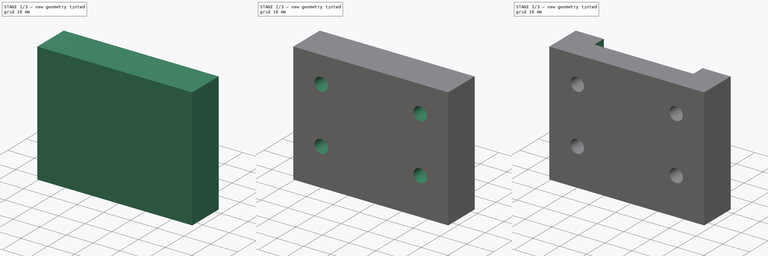
[diagram: build sequence overview — one tinted view per stage of 3, left to right]
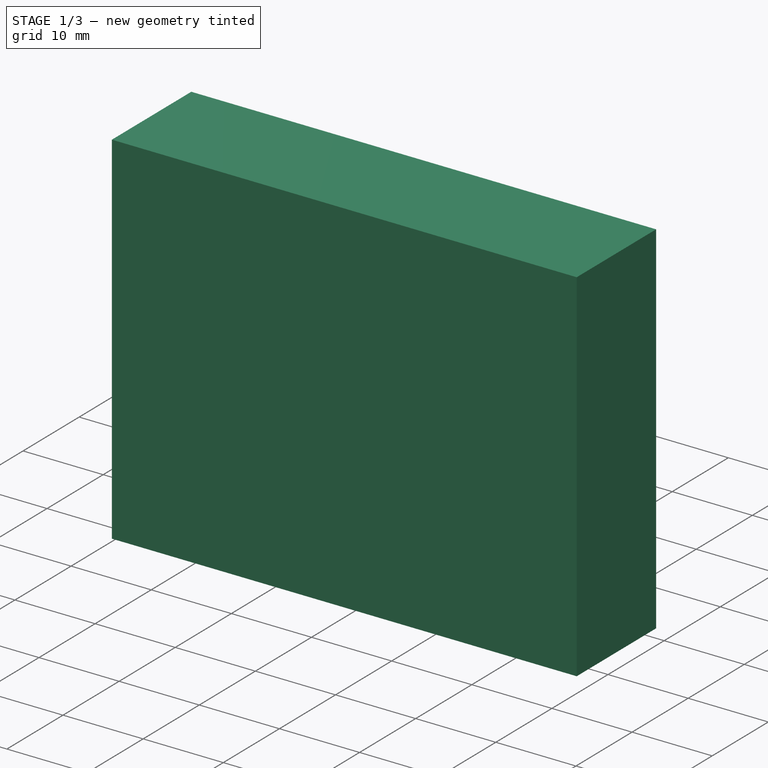
[diagram: stage 1 of 3 — iso view after this stage's code; geometry added in this stage tinted green]
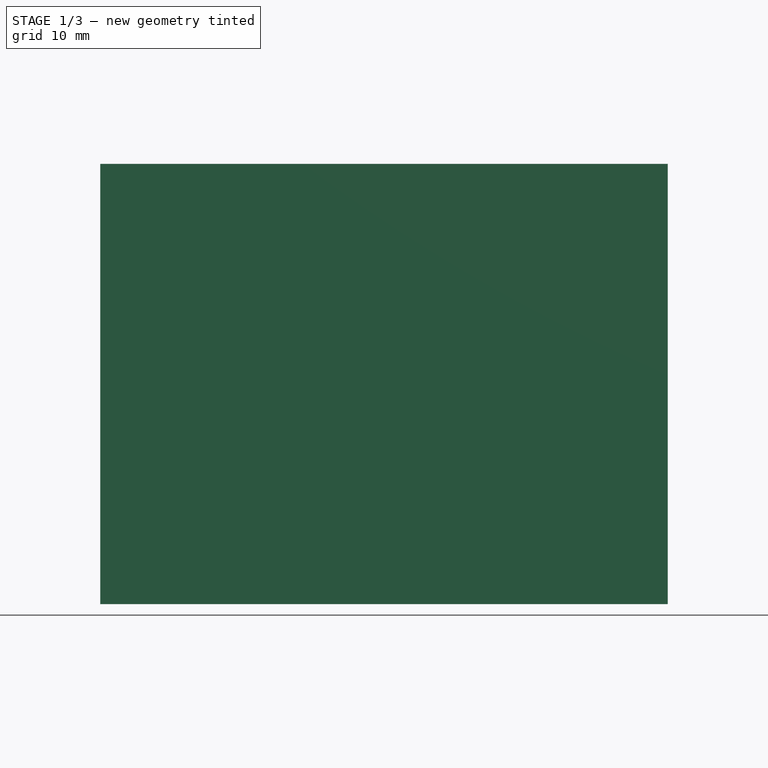
[diagram: stage 1 of 3 — front view after this stage's code; geometry added in this stage tinted green]
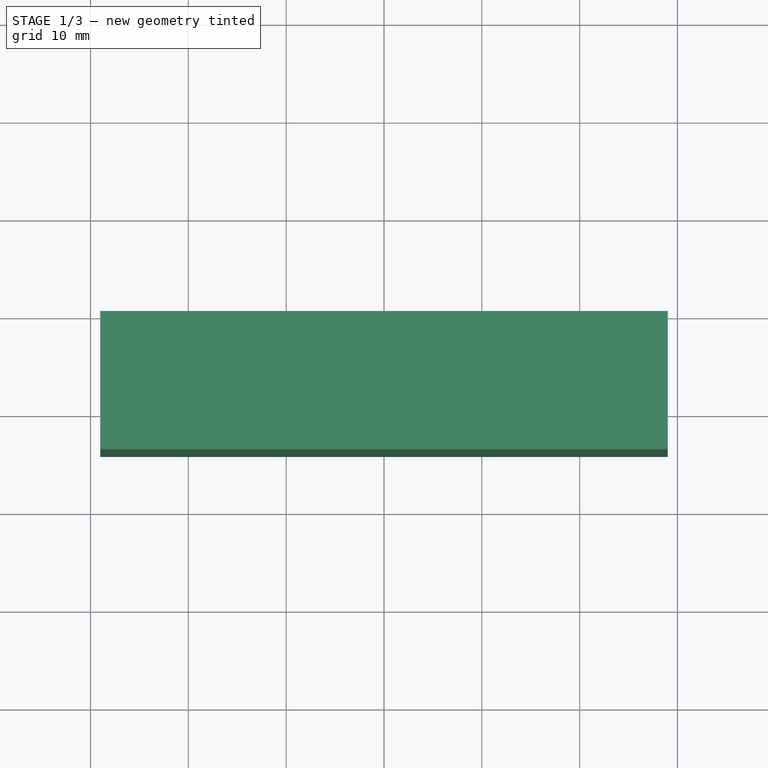
[diagram: stage 1 of 3 — top view after this stage's code; geometry added in this stage tinted green]
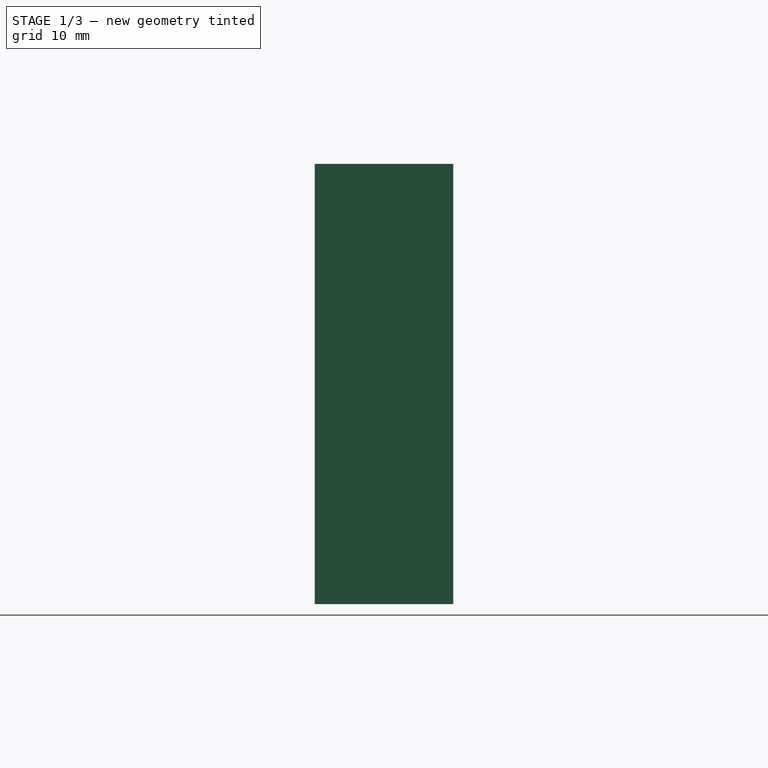
[diagram: stage 1 of 3 — right view after this stage's code; geometry added in this stage tinted green]
FCSTD DOCUMENT  (FreeCAD 0.15R4664 (Git))
Label: ballnut_house_support
License: CC-BY 3.0
LicenseURL: http://creativecommons.org/licenses/by/3.0/
objects: Drawing::FeatureView×32, Drawing::FeatureViewPart×7, Sketcher::SketchObject×5, PartDesign::Pocket×4, PartDesign::Pad×1, Drawing::FeaturePage×1
note: 15 computed .brp shape members not serialized (recipe doc carries the construction recipe); baked Part::Feature solids carry a one-line shape summary decoded from their .brp

FEATURE [Sketcher::SketchObject] Sketch001
  Placement = pos=(0,0,0) rot=(1,0,0;1.5708rad)
  sketch-geometry (4):
    g0: LineSegment StartX=-29 StartY=40 StartZ=0 EndX=29 EndY=40 EndZ=0
    g1: LineSegment StartX=29 StartY=40 StartZ=0 EndX=29 EndY=-5 EndZ=0
    g2: LineSegment StartX=29 StartY=-5 StartZ=0 EndX=-29 EndY=-5 EndZ=0
    g3: LineSegment StartX=-29 StartY=-5 StartZ=0 EndX=-29 EndY=40 EndZ=0
  constraints (12):
    c: Coincident(g0,g1)
    c: Coincident(g1,g2)
    c: Coincident(g2,g3)
    c: Coincident(g3,g0)
    c: Horizontal(g0)
    c: Horizontal(g2)
    c: Vertical(g1)
    c: Vertical(g3)
    c: DistanceY(g1,g0) = 45
    c: DistanceX(g2,g1) = 58
    c: DistanceX(g-1,g2) = -29
    c: Distance(g-1,g2) = 5
FEATURE [PartDesign::Pad] Pad
  Length = 14.15
  Length2 = 792
  Placement = pos=(0,0,0) rot=(1,0,0;1.5708rad)
  Sketch = -> Sketch001
  Type = 0
FEATURE [Sketcher::SketchObject] Sketch002
  Placement = pos=(0,0,0) rot=(-1,0,0;1.5708rad)
  Support = -> Pad [Face5]
  sketch-geometry (4):
    g0: LineSegment StartX=-24 StartY=0 StartZ=0 EndX=24 EndY=0 EndZ=0
    g1: LineSegment StartX=24 StartY=0 StartZ=0 EndX=24 EndY=-35 EndZ=0
    g2: LineSegment StartX=24 StartY=-35 StartZ=0 EndX=-24 EndY=-35 EndZ=0
    g3: LineSegment StartX=-24 StartY=-35 StartZ=0 EndX=-24 EndY=0 EndZ=0
  constraints (12):
    c: Coincident(g0,g1)
    c: Coincident(g1,g2)
    c: Coincident(g2,g3)
    c: Coincident(g3,g0)
    c: Horizontal(g0)
    c: Horizontal(g2)
    c: Vertical(g1)
    c: Vertical(g3)
    c: PointOnObject(g0,g-1)
    c: DistanceX(g0,g0) = 48
    c: DistanceX(g-1,g0) = 24
    c: DistanceY(g0,g1) = -35
FEATURE [PartDesign::Pocket] Pocket
  Length = 5
  Placement = pos=(0,0,0) rot=(1,0,0;1.5708rad)
  Sketch = -> Sketch002
  Type = 0
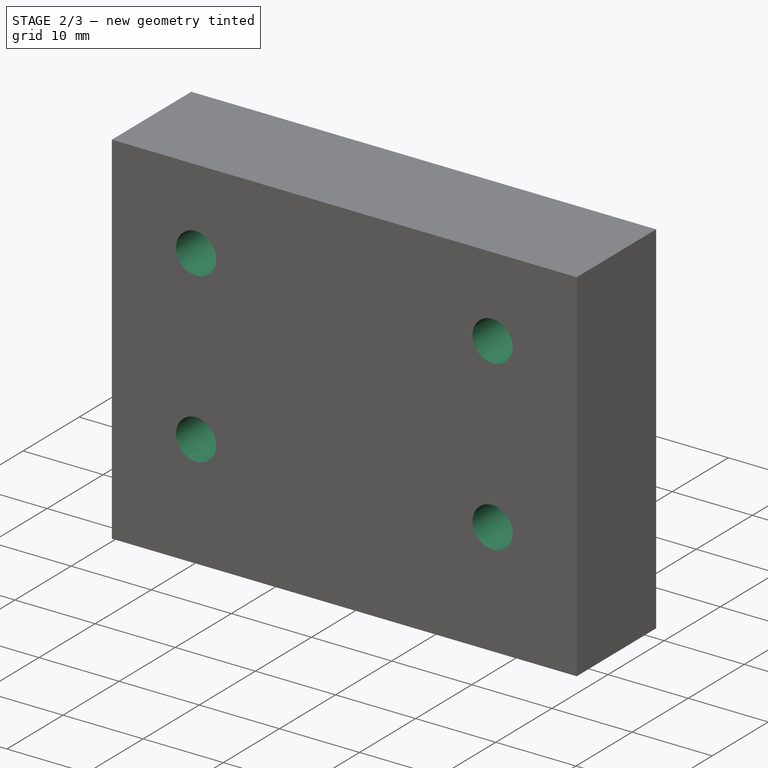
[diagram: stage 2 of 3 — iso view after this stage's code; geometry added in this stage tinted green]
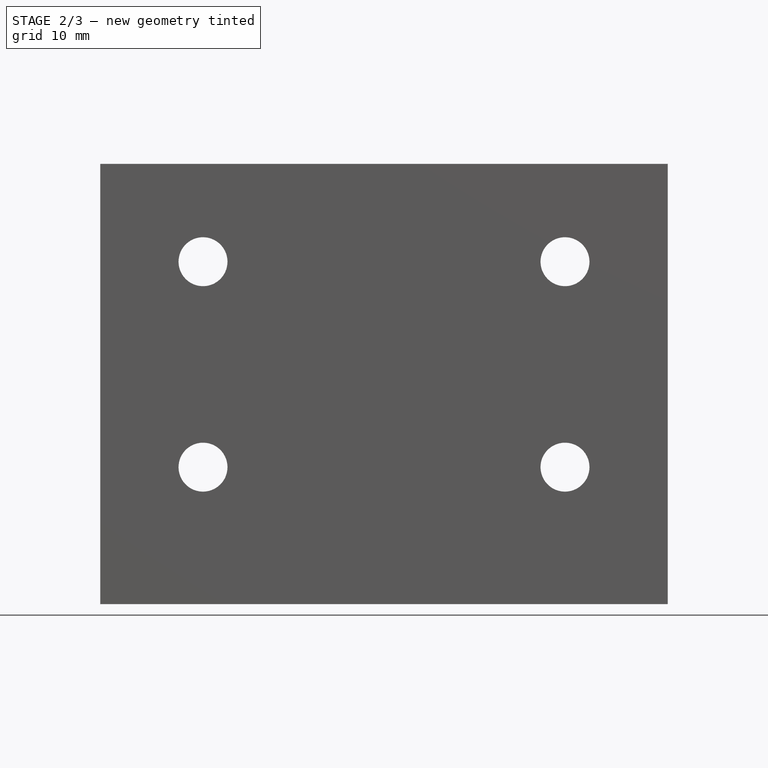
[diagram: stage 2 of 3 — front view after this stage's code; geometry added in this stage tinted green]
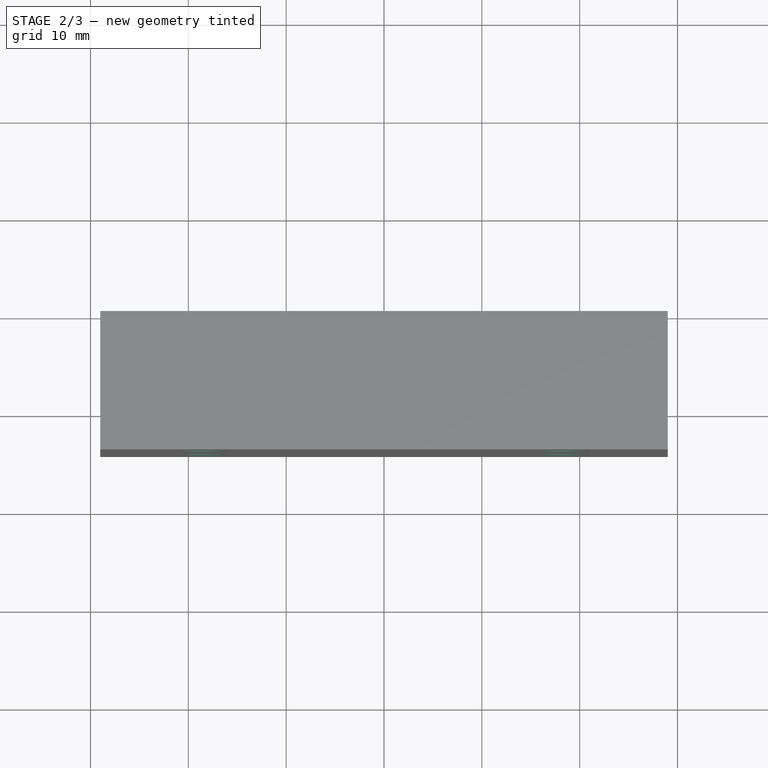
[diagram: stage 2 of 3 — top view after this stage's code; geometry added in this stage tinted green]
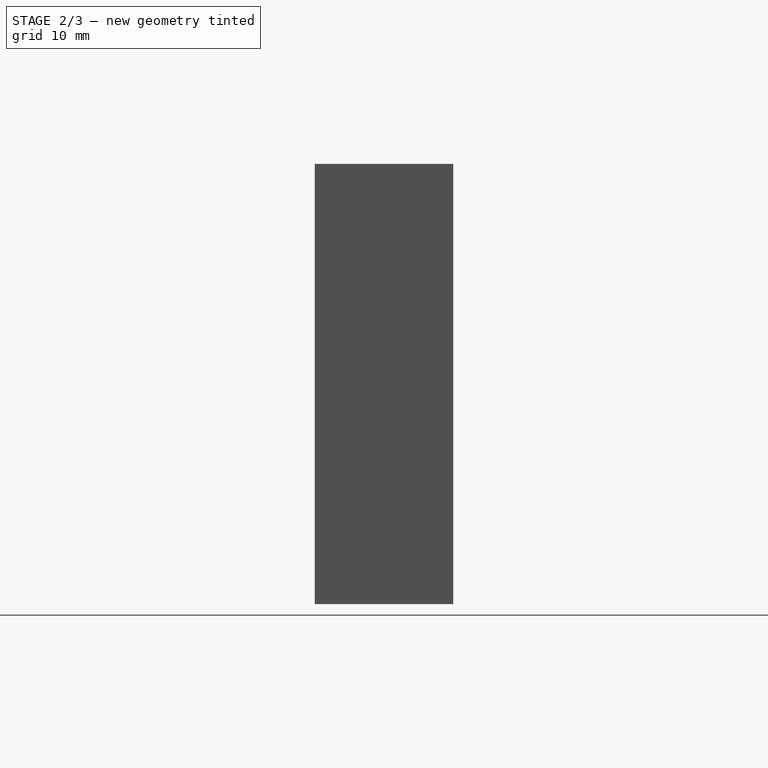
[diagram: stage 2 of 3 — right view after this stage's code; geometry added in this stage tinted green]
FEATURE [Sketcher::SketchObject] Sketch004
  Placement = pos=(0,-5,0) rot=(-1,0,0;1.5708rad)
  Support = -> Pocket [Face11]
  sketch-geometry (4):
    g0: Circle CenterX=-18.5 CenterY=-9 CenterZ=0 NormalX=0 NormalY=0 NormalZ=1 Radius=2.5
    g1: Circle CenterX=18.5 CenterY=-9 CenterZ=0 NormalX=0 NormalY=0 NormalZ=1 Radius=2.5
    g2: Circle CenterX=-18.5 CenterY=-30 CenterZ=0 NormalX=0 NormalY=0 NormalZ=1 Radius=2.5
    g3: Circle CenterX=18.5 CenterY=-30 CenterZ=0 NormalX=0 NormalY=0 NormalZ=1 Radius=2.5
  constraints (12):
    c: Radius(g0) = 2.5
    c: DistanceY(g-1,g0) = -9
    c: DistanceX(g-2,g0) = -18.5
    c: Radius(g1) = 2.5
    c: DistanceY(g-1,g1) = -9
    c: Radius(g2) = 2.5
    c: DistanceX(g-2,g2) = -18.5
    c: DistanceX(g-2,g1) = 18.5
    c: Radius(g3) = 2.5
    c: DistanceX(g-2,g3) = 18.5
    c: DistanceY(g-1,g3) = -30
    c: DistanceY(g-1,g2) = -30
FEATURE [PartDesign::Pocket] Pocket001
  Length = 10
  Placement = pos=(0,0,0) rot=(1,0,0;1.5708rad)
  Sketch = -> Sketch004
  Type = 0
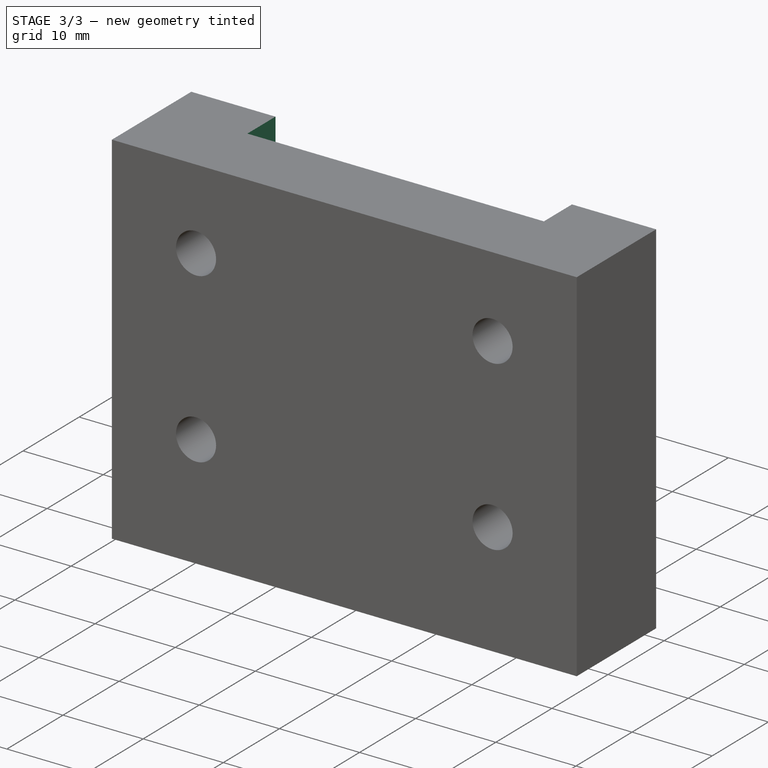
[diagram: stage 3 of 3 — iso view after this stage's code; geometry added in this stage tinted green]
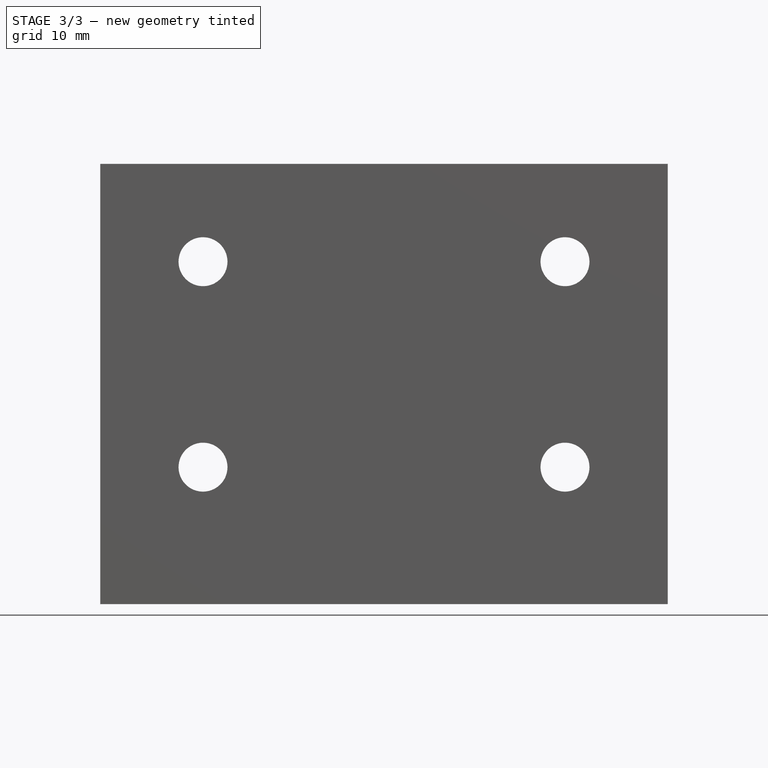
[diagram: stage 3 of 3 — front view after this stage's code; geometry added in this stage tinted green]
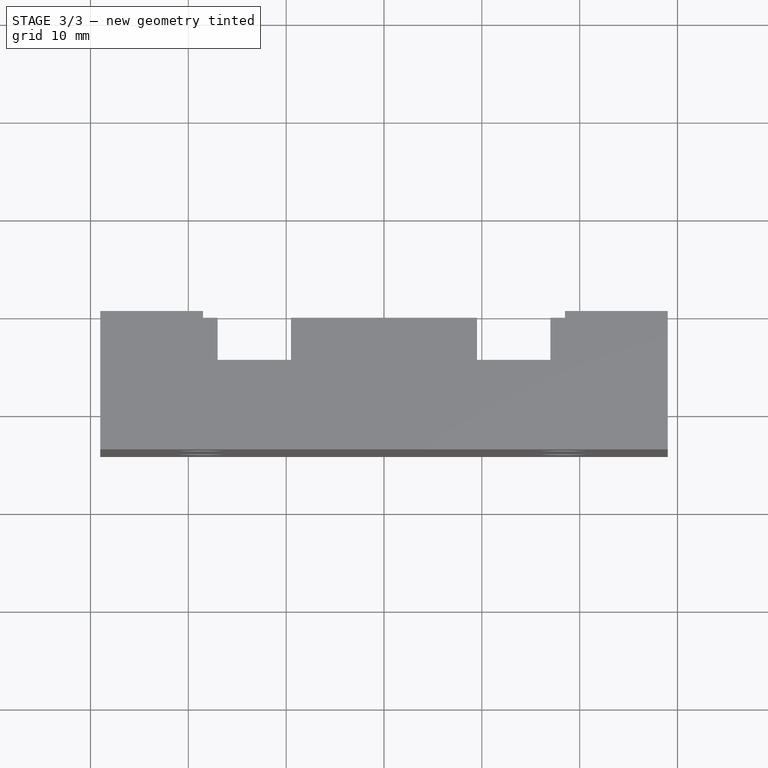
[diagram: stage 3 of 3 — top view after this stage's code; geometry added in this stage tinted green]
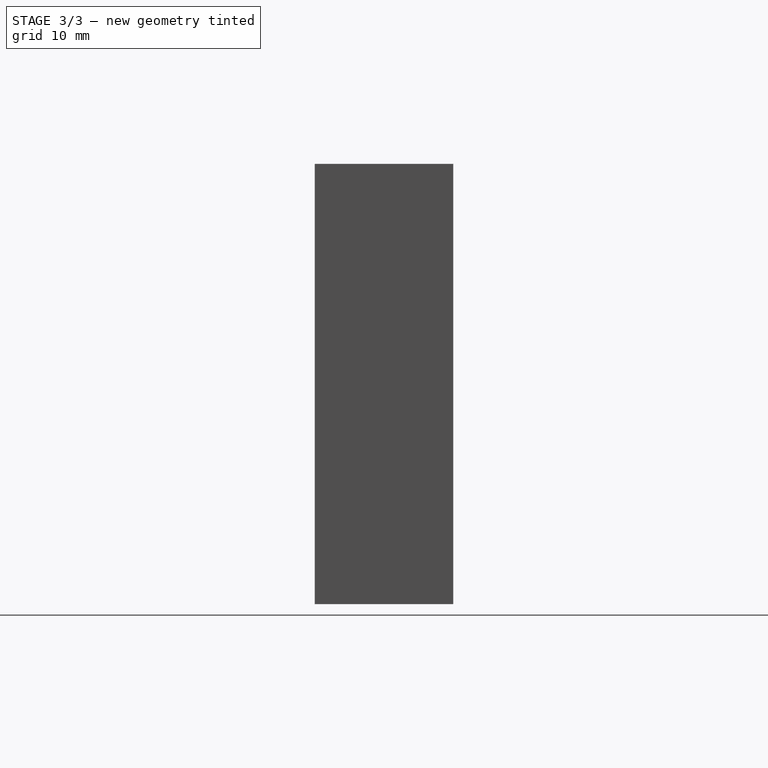
[diagram: stage 3 of 3 — right view after this stage's code; geometry added in this stage tinted green]
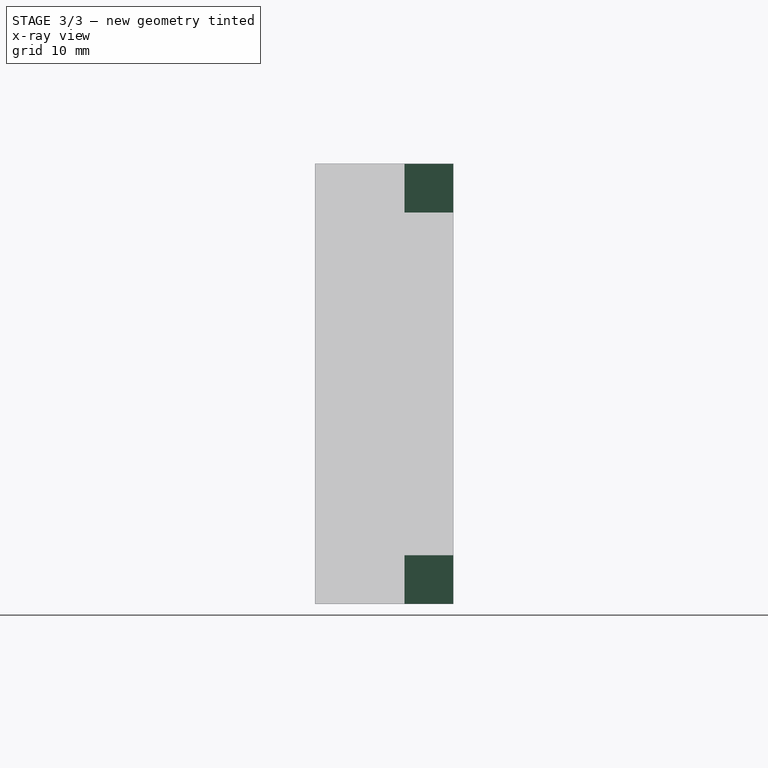
[diagram: stage 3 of 3 — x-ray composite at the right view; earlier geometry ghosted, this stage's added geometry solid]
FEATURE [Sketcher::SketchObject] Sketch
  Placement = pos=(0,0,40) rot=(0,0,1;3.14159rad)
  Support = -> Pocket001 [Face1]
  sketch-geometry (4):
    g0: LineSegment StartX=-18.5 StartY=0 StartZ=0 EndX=18.5 EndY=0 EndZ=0
    g1: LineSegment StartX=18.5 StartY=0 StartZ=0 EndX=18.5 EndY=5 EndZ=0
    g2: LineSegment StartX=18.5 StartY=5 StartZ=0 EndX=-18.5 EndY=5 EndZ=0
    g3: LineSegment StartX=-18.5 StartY=5 StartZ=0 EndX=-18.5 EndY=0 EndZ=0
  constraints (12):
    c: Coincident(g0,g1)
    c: Coincident(g1,g2)
    c: Coincident(g2,g3)
    c: Coincident(g3,g0)
    c: Horizontal(g0)
    c: Horizontal(g2)
    c: Vertical(g1)
    c: Vertical(g3)
    c: PointOnObject(g0,g-1)
    c: DistanceY(g0,g1) = 5
    c: DistanceX(g0,g0) = -37
    c: DistanceX(g-1,g0) = -18.5
FEATURE [PartDesign::Pocket] Pocket002
  Length = 5
  Placement = pos=(0,0,0) rot=(1,0,0;1.5708rad)
  Sketch = -> Sketch
  Type = 0
FEATURE [Sketcher::SketchObject] Sketch005
  Placement = pos=(0,0,0) rot=(0,0,1;3.14159rad)
  Support = -> Pocket002 [Face11]
  sketch-geometry (8):
    g0: LineSegment StartX=9.5 StartY=5 StartZ=0 EndX=17 EndY=5 EndZ=0
    g1: LineSegment StartX=17 StartY=5 StartZ=0 EndX=17 EndY=0 EndZ=0
    g2: LineSegment StartX=17 StartY=0 StartZ=0 EndX=9.5 EndY=0 EndZ=0
    g3: LineSegment StartX=9.5 StartY=0 StartZ=0 EndX=9.5 EndY=5 EndZ=0
    g4: LineSegment StartX=-9.5 StartY=5 StartZ=0 EndX=-17 EndY=5 EndZ=0
    g5: LineSegment StartX=-17 StartY=5 StartZ=0 EndX=-17 EndY=0 EndZ=0
    g6: LineSegment StartX=-17 StartY=0 StartZ=0 EndX=-9.5 EndY=0 EndZ=0
    g7: LineSegment StartX=-9.5 StartY=0 StartZ=0 EndX=-9.5 EndY=5 EndZ=0
  constraints (24):
    c: Coincident(g0,g1)
    c: Coincident(g1,g2)
    c: Coincident(g2,g3)
    c: Coincident(g3,g0)
    c: Horizontal(g0)
    c: Horizontal(g2)
    c: Vertical(g1)
    c: Vertical(g3)
    c: PointOnObject(g1,g-1)
    c: Coincident(g4,g5)
    c: Coincident(g5,g6)
    c: Coincident(g6,g7)
    c: Coincident(g7,g4)
    c: Horizontal(g4)
    c: Horizontal(g6)
    c: Vertical(g5)
    c: Vertical(g7)
    c: PointOnObject(g5,g-1)
    c: DistanceY(g4,g5) = -5
    c: DistanceY(g0,g1) = -5
    c: DistanceX(g0,g0) = 7.5
    c: DistanceX(g4,g4) = 7.5
    c: DistanceX(g-1,g6) = -9.5
    c: DistanceX(g-1,g2) = 9.5
FEATURE [PartDesign::Pocket] Pocket003
  Length = 5
  Placement = pos=(0,0,0) rot=(1,0,0;1.5708rad)
  Sketch = -> Sketch005
  Type = 0
FEATURE [Drawing::FeatureViewPart] Ortho  label="Ortho_0_0"
  Direction = (0,1,0)
  HiddenWidth = 0.15
  LineWidth = 0.35
  Rotation = 90
  ShowHiddenLines = false
  ShowSmoothLines = false
  Source = -> Pocket003
  Tolerance = 0.05
  ViewResult = <g id="Ortho_0_0"\n   transform="rotate(90,153.5,69.5) translate(153.5,69.5) scale(1,1)"\n  >\n<g   stroke="rgb(0, 0, 0)"\n   stroke-width="0.35"\n   stroke-linecap="butt"\n   stroke-linejoin="miter"\n   fill="none"\n   transform="scale(1,-1)"\n  >\n<path id= "1" d=" M 40 -29 L 40 -18.5 " />\n<path id= "2" d=" M 40 -18.5 L 40 18.5 " />\n<path id= "3" d=" M 40 18.5 L 40 29 " />\n<path id= "4" d=" M 40 -18.5 L 35 -18.5 " />\n<path id= "5" d=" M 35 -18.5 L 35 -24 " />\n<path id= "6" d=" M 35 -24 L -7.10543e-15 -24 " />\n<path id= "7" d=" M -7.70714e-45 -24 L -7.70714e-45 -17 " />\n<path id= "8" d=" M 1.75162e-46 -17 L -5 -17 " />\n<path id= "9" d=" M -5 -17 L -5 -29 " />\n<path id= "10" d=" M -5 -29 L 40 -29 " />\n<path id= "11" d=" M 35 -18.5 L 35 18.5 " />\n<path id= "12" d=" M 40 18.5 L 35 18.5 " />\n<path id= "13" d=" M 1.75162e-46 17 L -5 17 " />\n<path id= "14" d=" M -7.70714e-45 17 L -7.70714e-45 24 " />\n<path id= "15" d=" M -7.70714e-45 24 L 35 24 " />\n<path id= "16" d=" M 35 24 L 35 18.5 " />\n<path id= "17" d=" M 40 29 L -5 29 " />\n<path id= "18" d=" M -5 29 L -5 17 " />\n<path id= "19" d=" M 1.249e-14 -24 L 1.249e-14 -17 " />\n<path id= "20" d=" M -5 9.5 L -5 17 " />\n<path id= "21" d=" M -5 9.5 L -5 -9.5 " />\n<path id= "22" d=" M -5 -9.5 L -5 -17 " />\n<path id= "23" d=" M 1.249e-14 -9.5 L 1.249e-14 -17 " />\n<path id= "24" d=" M 1.249e-14 -9.5 L 1.249e-14 9.5 " />\n<path id= "25" d=" M 1.249e-14 9.5 L 1.249e-14 17 " />\n<path id= "26" d=" M 1.249e-14 17 L 1.249e-14 24 " />\n<circle cx ="9" cy ="-18.5" r ="2.5" /><circle cx ="9" cy ="18.5" r ="2.5" /><circle cx ="30" cy ="18.5" r ="2.5" /><circle cx ="30" cy ="-18.5" r ="2.5" /><path id= "31" d=" M 1.75162e-46 9.5 L -5 9.5 " />\n<path id= "32" d=" M 1.75162e-46 -9.5 L -5 -9.5 " />\n<path id= "33" d=" M -7.70714e-45 -9.5 L -7.70714e-45 9.5 " />\n</g>\n</g>
  Visible = true
  X = 153.5
  Y = 69.5
FEATURE [Drawing::FeatureViewPart] Ortho001  label="Ortho_-1_1"
  Direction = (-0.57735,0.57735,-0.57735)
  HiddenWidth = 0.15
  LineWidth = 0.35
  Rotation = 120
  Scale = 0.7
  ShowHiddenLines = false
  ShowSmoothLines = false
  Source = -> Pocket003
  Tolerance = 0.05
  ViewResult = <blob: 4032 chars omitted>
  Visible = true
  X = 75.7519
  Y = 29.2698
FEATURE [Drawing::FeatureViewPart] Ortho002  label="Ortho_-1_-1"
  Direction = (-0.57735,0.57735,0.57735)
  HiddenWidth = 0.15
  LineWidth = 0.35
  Rotation = 60
  Scale = 0.7
  ShowHiddenLines = false
  ShowSmoothLines = false
  Source = -> Pocket003
  Tolerance = 0.05
  ViewResult = <blob: 4001 chars omitted>
  Visible = true
  X = 75.7519
  Y = 124.726
FEATURE [Drawing::FeatureViewPart] Ortho003  label="Ortho_1_-1"
  Direction = (0.57735,0.57735,0.57735)
  HiddenWidth = 0.15
  LineWidth = 0.35
  Rotation = -60
  Scale = 0.7
  ShowHiddenLines = false
  ShowSmoothLines = false
  Source = -> Pocket003
  Tolerance = 0.05
  ViewResult = <blob: 3977 chars omitted>
  Visible = true
  X = 231.248
  Y = 124.726
FEATURE [Drawing::FeatureViewPart] Ortho004  label="Ortho_1_1"
  Direction = (0.57735,0.57735,-0.57735)
  HiddenWidth = 0.15
  LineWidth = 0.35
  Rotation = -120
  Scale = 0.7
  ShowHiddenLines = false
  ShowSmoothLines = false
  Source = -> Pocket003
  Tolerance = 0.05
  ViewResult = <blob: 3935 chars omitted>
  Visible = true
  X = 231.248
  Y = 29.2698
FEATURE [Drawing::FeatureViewPart] Ortho005  label="Ortho_0_1"
  Direction = (0,0,-1)
  HiddenWidth = 0.15
  LineWidth = 0.35
  Rotation = 180
  ShowHiddenLines = false
  ShowSmoothLines = false
  Source = -> Pocket003
  Tolerance = 0.05
  ViewResult = <g id="Ortho_0_1"\n   transform="rotate(180,153.5,44.325) translate(153.5,44.325) scale(1,1)"\n  >\n<g   stroke="rgb(0, 0, 0)"\n   stroke-width="0.35"\n   stroke-linecap="butt"\n   stroke-linejoin="miter"\n   fill="none"\n   transform="scale(1,-1)"\n  >\n<path id= "1" d=" M 18.5 8.54872e-14 L 24 8.54872e-14 " />\n<path id= "2" d=" M 17 -1.22125e-14 L 29 -1.22125e-14 " />\n<path id= "3" d=" M -24 8.54872e-14 L -18.5 8.54872e-14 " />\n<path id= "4" d=" M -29 -1.22125e-14 L -17 -1.22125e-14 " />\n<path id= "5" d=" M -29 -1.22125e-14 L -29 -14.15 " />\n<path id= "6" d=" M -29 -14.15 L 29 -14.15 " />\n<path id= "7" d=" M 29 -1.22125e-14 L 29 -14.15 " />\n<path id= "8" d=" M 17 -5 L 17 -1.15463e-14 " />\n<path id= "9" d=" M -17 -5 L -17 -1.15463e-14 " />\n<path id= "10" d=" M -9.5 -5 L -17 -5 " />\n<path id= "11" d=" M -9.5 -1.249e-14 L -9.5 -5 " />\n<path id= "12" d=" M -9.5 -1.22125e-14 L 9.5 -1.22125e-14 " />\n<path id= "13" d=" M 9.5 -1.249e-14 L 9.5 -5 " />\n<path id= "14" d=" M 9.5 -5 L 17 -5 " />\n<path d="M16,-5 L16.0055,-5  L16.0219,-5  L16.0492,-5  L16.0872,-5  L16.1358,-5  L16.1948,-5  L16.2639,-5  L16.3428,-5  L16.4312,-5  L16.5286,-5  L16.6347,-5  L16.749,-5  L16.8709,-5  L17,-5 " /><path d="M-17,-5 L-16.8709,-5  L-16.749,-5  L-16.6347,-5  L-16.5286,-5  L-16.4312,-5  L-16.3428,-5  L-16.2639,-5  L-16.1948,-5  L-16.1358,-5  L-16.0872,-5  L-16.0492,-5  L-16.0219,-5  L-16.0055,-5  L-16,-5 " /></g>\n</g>
  Visible = true
  X = 153.5
  Y = 44.325
FEATURE [Drawing::FeatureViewPart] Ortho006  label="Ortho_0_-1"
  Direction = (0,0,1)
  HiddenWidth = 0.15
  LineWidth = 0.35
  Rotation = 0
  ShowHiddenLines = false
  ShowSmoothLines = false
  Source = -> Pocket003
  Tolerance = 0.05
  ViewResult = <blob: 2039 chars omitted>
  Visible = true
  X = 153.5
  Y = 129.675
FEATURE [Drawing::FeatureView] centerLines001
  Rotation = 0
  ViewResult = <g  transform="scale(1.000000,1.000000)" stroke="rgb(0,0,255)"  stroke-width="0.300000" >\n<path d="M 132.500000,78.500000 L 134.500000,78.500000 M 136.500000,78.500000 L 142.500000,78.500000 M 144.500000,78.500000 L 146.500000,78.500000 M 148.500000,78.500000 L 154.500000,78.500000 M 156.500000,78.500000 L 158.500000,78.500000 M 160.500000,78.500000 L 166.500000,78.500000 M 168.500000,78.500000 L 170.500000,78.500000 M 172.500000,78.500000 L 175.614316,78.500000 "/>\n<path d="M 132.500000,78.500000 L 131.218176,78.500000 "/>\n</g> 
  Visible = true
  X = 0
  Y = 0
FEATURE [Drawing::FeatureView] centerLines002
  Rotation = 0
  ViewResult = <g  transform="scale(1.000000,1.000000)" stroke="rgb(0,0,255)"  stroke-width="0.300000" >\n<path d="M 132.500000,99.500000 L 134.500000,99.500000 M 136.500000,99.500000 L 142.500000,99.500000 M 144.500000,99.500000 L 146.500000,99.500000 M 148.500000,99.500000 L 154.500000,99.500000 M 156.500000,99.500000 L 158.500000,99.500000 M 160.500000,99.500000 L 166.500000,99.500000 M 168.500000,99.500000 L 170.500000,99.500000 M 172.500000,99.500000 L 175.745665,99.500000 "/>\n<path d="M 132.500000,99.500000 L 131.218176,99.500000 "/>\n</g> 
  Visible = true
  X = 0
  Y = 0
FEATURE [Drawing::FeatureView] centerLines003
  Rotation = 0
  ViewResult = <g  transform="scale(1.000000,1.000000)" stroke="rgb(0,0,255)"  stroke-width="0.300000" >\n<path d="M 135.000000,76.000000 L 135.000000,78.000000 M 135.000000,80.000000 L 135.000000,86.000000 M 135.000000,88.000000 L 135.000000,90.000000 M 135.000000,92.000000 L 135.000000,98.000000 M 135.000000,100.000000 L 135.000000,102.000000 "/>\n<path d="M 135.000000,76.000000 L 135.000000,74.737880 "/>\n</g> 
  Visible = true
  X = 0
  Y = 0
FEATURE [Drawing::FeatureView] centerLines004
  Rotation = 0
  ViewResult = <g  transform="scale(1.000000,1.000000)" stroke="rgb(0,0,255)"  stroke-width="0.300000" >\n<path d="M 172.000000,76.000000 L 172.000000,78.000000 M 172.000000,80.000000 L 172.000000,86.000000 M 172.000000,88.000000 L 172.000000,90.000000 M 172.000000,92.000000 L 172.000000,98.000000 M 172.000000,100.000000 L 172.000000,101.927232 "/>\n<path d="M 172.000000,76.000000 L 172.000000,74.737880 "/>\n</g> 
  Visible = true
  X = 0
  Y = 0
FEATURE [Drawing::FeatureView] dim001
  Rotation = 0
  ViewResult = <g   >\n<line x1="124.500000" y1="28.175000" x2="124.500000" y2="24.858076" style="stroke:rgb(0,0,255);stroke-width:0.30" />\n<line x1="182.500000" y1="28.175000" x2="182.500000" y2="24.858076" style="stroke:rgb(0,0,255);stroke-width:0.30" />\n<line x1="124.500000" y1="25.858076" x2="182.500000" y2="25.858076" style="stroke:rgb(0,0,255);stroke-width:0.30" />\n<polygon points="124.500000,25.858076 127.500000,26.858076 128.500000,25.858076 127.500000,24.858076" style="fill:rgb(0,0,255);stroke:rgb(0,0,255);stroke-width:0" /><polygon points="182.500000,25.858076 179.500000,24.858076 178.500000,25.858076 179.500000,26.858076" style="fill:rgb(0,0,255);stroke:rgb(0,0,255);stroke-width:0" />\n<text x="148.435302" y="24.117629" font-family="Verdana" font-size="3.6" fill="rgb(255,0,0)" text-anchor="inherit"  >58mm</text>\n</g> 
  Visible = true
  X = 0
  Y = 0
FEATURE [Drawing::FeatureView] dim002
  Rotation = 0
  ViewResult = <g   >\n<line x1="122.500000" y1="30.175000" x2="118.344967" y2="30.175000" style="stroke:rgb(0,0,255);stroke-width:0.30" />\n<line x1="122.500000" y1="44.325000" x2="118.344967" y2="44.325000" style="stroke:rgb(0,0,255);stroke-width:0.30" />\n<line x1="119.344967" y1="30.175000" x2="119.344967" y2="44.325000" style="stroke:rgb(0,0,255);stroke-width:0.30" />\n<polygon points="119.344967,30.175000 118.344967,33.175000 119.344967,34.175000 120.344967,33.175000" style="fill:rgb(0,0,255);stroke:rgb(0,0,255);stroke-width:0" /><polygon points="119.344967,44.325000 120.344967,41.325000 119.344967,40.325000 118.344967,41.325000" style="fill:rgb(0,0,255);stroke:rgb(0,0,255);stroke-width:0" />\n<text x="115.864072" y="44.505727" font-family="Verdana" font-size="3.6" fill="rgb(255,0,0)" text-anchor="inherit" transform="rotate(-90.000000 115.864072,44.505727)" >14.15mm</text>\n</g> 
  Visible = true
  X = 0
  Y = 0
FEATURE [Drawing::FeatureView] dim003
  Rotation = 0
  ViewResult = <g   >\n<line x1="124.500000" y1="46.325000" x2="124.500000" y2="49.433914" style="stroke:rgb(0,0,255);stroke-width:0.30" />\n<line x1="136.500000" y1="46.325000" x2="136.500000" y2="49.433914" style="stroke:rgb(0,0,255);stroke-width:0.30" />\n<line x1="124.500000" y1="48.433914" x2="136.500000" y2="48.433914" style="stroke:rgb(0,0,255);stroke-width:0.30" />\n<polygon points="124.500000,48.433914 127.500000,49.433914 128.500000,48.433914 127.500000,47.433914" style="fill:rgb(0,0,255);stroke:rgb(0,0,255);stroke-width:0" /><polygon points="136.500000,48.433914 133.500000,47.433914 132.500000,48.433914 133.500000,49.433914" style="fill:rgb(0,0,255);stroke:rgb(0,0,255);stroke-width:0" />\n<text x="125.178770" y="53.152405" font-family="Verdana" font-size="3.6" fill="rgb(255,0,0)" text-anchor="inherit"  >12mm</text>\n</g> 
  Visible = true
  X = 0
  Y = 0
FEATURE [Drawing::FeatureView] dim004
  Rotation = 0
  ViewResult = <g   >\n<line x1="144.000000" y1="46.325000" x2="144.000000" y2="49.599324" style="stroke:rgb(0,0,255);stroke-width:0.30" />\n<line x1="163.000000" y1="46.325000" x2="163.000000" y2="49.599324" style="stroke:rgb(0,0,255);stroke-width:0.30" />\n<line x1="144.000000" y1="48.599324" x2="163.000000" y2="48.599324" style="stroke:rgb(0,0,255);stroke-width:0.30" />\n<polygon points="144.000000,48.599324 147.000000,49.599324 148.000000,48.599324 147.000000,47.599324" style="fill:rgb(0,0,255);stroke:rgb(0,0,255);stroke-width:0" /><polygon points="163.000000,48.599324 160.000000,47.599324 159.000000,48.599324 160.000000,49.599324" style="fill:rgb(0,0,255);stroke:rgb(0,0,255);stroke-width:0" />\n<text x="148.315506" y="53.306016" font-family="Verdana" font-size="3.6" fill="rgb(255,0,0)" text-anchor="inherit"  >19mm</text>\n</g> 
  Visible = true
  X = 0
  Y = 0
FEATURE [Drawing::FeatureView] dim005
  Rotation = 0
  ViewResult = <g   >\n<line x1="170.500000" y1="46.325000" x2="170.500000" y2="49.599324" style="stroke:rgb(0,0,255);stroke-width:0.30" />\n<line x1="182.500000" y1="46.325000" x2="182.500000" y2="49.599324" style="stroke:rgb(0,0,255);stroke-width:0.30" />\n<line x1="170.500000" y1="48.599324" x2="182.500000" y2="48.599324" style="stroke:rgb(0,0,255);stroke-width:0.30" />\n<polygon points="170.500000,48.599324 173.500000,49.599324 174.500000,48.599324 173.500000,47.599324" style="fill:rgb(0,0,255);stroke:rgb(0,0,255);stroke-width:0" /><polygon points="182.500000,48.599324 179.500000,47.599324 178.500000,48.599324 179.500000,49.599324" style="fill:rgb(0,0,255);stroke:rgb(0,0,255);stroke-width:0" />\n<text x="172.834084" y="53.196558" font-family="Verdana" font-size="3.6" fill="rgb(255,0,0)" text-anchor="inherit"  >12mm</text>\n</g> 
  Visible = true
  X = 0
  Y = 0
FEATURE [Drawing::FeatureView] centerLines005
  Rotation = 0
  ViewResult = <g  transform="scale(1.000000,1.000000)" stroke="rgb(0,0,255)"  stroke-width="0.300000" >\n<path d="M 136.500000,39.325000 L 138.500000,39.325000 M 140.500000,39.325000 L 146.500000,39.325000 M 148.500000,39.325000 L 150.500000,39.325000 M 152.500000,39.325000 L 158.500000,39.325000 M 160.500000,39.325000 L 162.500000,39.325000 M 164.500000,39.325000 L 170.500000,39.325000 M 172.500000,39.325000 L 174.044743,39.325000 "/>\n<path d="M 136.500000,39.325000 L 134.500000,39.325000 "/>\n</g> 
  Visible = true
  X = 0
  Y = 0
FEATURE [Drawing::FeatureView] dim006
  Rotation = 0
  ViewResult = <g   >\n<line x1="136.500000" y1="37.325000" x2="136.500000" y2="35.054817" style="stroke:rgb(0,0,255);stroke-width:0.30" />\n<line x1="144.000000" y1="37.325000" x2="144.000000" y2="35.054817" style="stroke:rgb(0,0,255);stroke-width:0.30" />\n<line x1="136.500000" y1="36.054817" x2="144.000000" y2="36.054817" style="stroke:rgb(0,0,255);stroke-width:0.30" />\n<polygon points="136.500000,36.054817 133.500000,35.054817 132.500000,36.054817 133.500000,37.054817" style="fill:rgb(0,0,255);stroke:rgb(0,0,255);stroke-width:0" /><polygon points="144.000000,36.054817 147.000000,37.054817 148.000000,36.054817 147.000000,35.054817" style="fill:rgb(0,0,255);stroke:rgb(0,0,255);stroke-width:0" />\n<text x="136.225589" y="34.556002" font-family="Verdana" font-size="3.6" fill="rgb(255,0,0)" text-anchor="inherit"  >7.5mm</text>\n</g> 
  Visible = true
  X = 0
  Y = 0
FEATURE [Drawing::FeatureView] dim007
  Rotation = 0
  ViewResult = <g   >\n<line x1="163.000000" y1="37.325000" x2="163.000000" y2="35.151962" style="stroke:rgb(0,0,255);stroke-width:0.30" />\n<line x1="170.500000" y1="37.325000" x2="170.500000" y2="35.151962" style="stroke:rgb(0,0,255);stroke-width:0.30" />\n<line x1="163.000000" y1="36.151962" x2="170.500000" y2="36.151962" style="stroke:rgb(0,0,255);stroke-width:0.30" />\n<polygon points="163.000000,36.151962 160.000000,35.151962 159.000000,36.151962 160.000000,37.151962" style="fill:rgb(0,0,255);stroke:rgb(0,0,255);stroke-width:0" /><polygon points="170.500000,36.151962 173.500000,37.151962 174.500000,36.151962 173.500000,35.151962" style="fill:rgb(0,0,255);stroke:rgb(0,0,255);stroke-width:0" />\n<text x="162.857303" y="34.902950" font-family="Verdana" font-size="3.6" fill="rgb(255,0,0)" text-anchor="inherit"  >7.5mm</text>\n</g> 
  Visible = true
  X = 0
  Y = 0
FEATURE [Drawing::FeatureView] dim008
  Rotation = 0
  ViewResult = <g   >\n<line x1="122.500000" y1="64.500000" x2="117.599061" y2="64.500000" style="stroke:rgb(0,0,255);stroke-width:0.30" />\n<line x1="122.500000" y1="109.500000" x2="117.599061" y2="109.500000" style="stroke:rgb(0,0,255);stroke-width:0.30" />\n<line x1="118.599061" y1="64.500000" x2="118.599061" y2="109.500000" style="stroke:rgb(0,0,255);stroke-width:0.30" />\n<polygon points="118.599061,64.500000 117.599061,67.500000 118.599061,68.500000 119.599061,67.500000" style="fill:rgb(0,0,255);stroke:rgb(0,0,255);stroke-width:0" /><polygon points="118.599061,109.500000 119.599061,106.500000 118.599061,105.500000 117.599061,106.500000" style="fill:rgb(0,0,255);stroke:rgb(0,0,255);stroke-width:0" />\n<text x="116.609978" y="92.243714" font-family="Verdana" font-size="3.6" fill="rgb(255,0,0)" text-anchor="inherit" transform="rotate(-90.000000 116.609978,92.243714)" >45mm</text>\n</g> 
  Visible = true
  X = 0
  Y = 0
FEATURE [Drawing::FeatureView] centerLines006
  Rotation = 0
  ViewResult = <g  transform="scale(1.000000,1.000000)" stroke="rgb(0,0,255)"  stroke-width="0.300000" >\n<path d="M 129.500000,69.500000 L 131.500000,69.500000 M 133.500000,69.500000 L 139.500000,69.500000 M 141.500000,69.500000 L 143.500000,69.500000 M 145.500000,69.500000 L 151.500000,69.500000 M 153.500000,69.500000 L 155.500000,69.500000 M 157.500000,69.500000 L 163.500000,69.500000 M 165.500000,69.500000 L 167.500000,69.500000 M 169.500000,69.500000 L 175.500000,69.500000 M 177.500000,69.500000 L 179.500000,69.500000 "/>\n<path d="M 129.500000,69.500000 L 127.500000,69.500000 "/>\n</g> 
  Visible = true
  X = 0
  Y = 0
FEATURE [Drawing::FeatureView] centerLines007
  Rotation = 0
  ViewResult = <g  transform="scale(1.000000,1.000000)" stroke="rgb(0,0,255)"  stroke-width="0.300000" >\n<path d="M 129.500000,104.500000 L 131.500000,104.500000 M 133.500000,104.500000 L 139.500000,104.500000 M 141.500000,104.500000 L 143.500000,104.500000 M 145.500000,104.500000 L 151.500000,104.500000 M 153.500000,104.500000 L 155.500000,104.500000 M 157.500000,104.500000 L 163.500000,104.500000 M 165.500000,104.500000 L 167.500000,104.500000 M 169.500000,104.500000 L 175.500000,104.500000 M 177.500000,104.500000 L 179.500000,104.500000 "/>\n<path d="M 129.500000,104.500000 L 127.514119,104.500000 "/>\n</g> 
  Visible = true
  X = 0
  Y = 0
FEATURE [Drawing::FeatureView] dim009
  Rotation = 0
  ViewResult = <g   >\n<line x1="181.500000" y1="104.500000" x2="188.826781" y2="104.500000" style="stroke:rgb(0,0,255);stroke-width:0.30" />\n<line x1="184.500000" y1="109.500000" x2="188.826781" y2="109.500000" style="stroke:rgb(0,0,255);stroke-width:0.30" />\n<line x1="187.826781" y1="104.500000" x2="187.826781" y2="109.500000" style="stroke:rgb(0,0,255);stroke-width:0.30" />\n<polygon points="187.826781,104.500000 188.826781,101.500000 187.826781,100.500000 186.826781,101.500000" style="fill:rgb(0,0,255);stroke:rgb(0,0,255);stroke-width:0" /><polygon points="187.826781,109.500000 186.826781,112.500000 187.826781,113.500000 188.826781,112.500000" style="fill:rgb(0,0,255);stroke:rgb(0,0,255);stroke-width:0" />\n<text x="192.311516" y="109.838000" font-family="Verdana" font-size="3.6" fill="rgb(255,0,0)" text-anchor="inherit" transform="rotate(-90.000000 192.311516,109.838000)" >5mm</text>\n</g> 
  Visible = true
  X = 0
  Y = 0
FEATURE [Drawing::FeatureView] dim011
  Rotation = 0
  ViewResult = <g   >\n<line x1="177.745665" y1="99.500000" x2="205.738067" y2="99.500000" style="stroke:rgb(0,0,255);stroke-width:0.30" />\n<line x1="177.614316" y1="78.500000" x2="205.738067" y2="78.500000" style="stroke:rgb(0,0,255);stroke-width:0.30" />\n<line x1="204.738067" y1="99.500000" x2="204.738067" y2="78.500000" style="stroke:rgb(0,0,255);stroke-width:0.30" />\n<polygon points="204.738067,99.500000 205.738067,96.500000 204.738067,95.500000 203.738067,96.500000" style="fill:rgb(0,0,255);stroke:rgb(0,0,255);stroke-width:0" /><polygon points="204.738067,78.500000 203.738067,81.500000 204.738067,82.500000 205.738067,81.500000" style="fill:rgb(0,0,255);stroke:rgb(0,0,255);stroke-width:0" />\n<text x="209.134589" y="93.026423" font-family="Verdana" font-size="3.6" fill="rgb(255,0,0)" text-anchor="inherit" transform="rotate(-90.000000 209.134589,93.026423)" >21mm</text>\n</g> 
  Visible = true
  X = 0
  Y = 0
FEATURE [Drawing::FeatureView] dim012
  Rotation = 0
  ViewResult = <g   >\n<line x1="177.614316" y1="78.500000" x2="199.343125" y2="78.500000" style="stroke:rgb(0,0,255);stroke-width:0.30" />\n<line x1="181.500000" y1="69.500000" x2="199.343125" y2="69.500000" style="stroke:rgb(0,0,255);stroke-width:0.30" />\n<line x1="198.343125" y1="78.500000" x2="198.343125" y2="69.500000" style="stroke:rgb(0,0,255);stroke-width:0.30" />\n<polygon points="198.343125,78.500000 197.343125,81.500000 198.343125,82.500000 199.343125,81.500000" style="fill:rgb(0,0,255);stroke:rgb(0,0,255);stroke-width:0" /><polygon points="198.343125,69.500000 199.343125,66.500000 198.343125,65.500000 197.343125,66.500000" style="fill:rgb(0,0,255);stroke:rgb(0,0,255);stroke-width:0" />\n<text x="202.140121" y="76.539463" font-family="Verdana" font-size="3.6" fill="rgb(255,0,0)" text-anchor="inherit" transform="rotate(-90.000000 202.140121,76.539463)" >9mm</text>\n</g> 
  Visible = true
  X = 0
  Y = 0
FEATURE [Drawing::FeatureView] dim013
  Rotation = 0
  ViewResult = <g   >\n<line x1="181.500000" y1="69.500000" x2="188.195941" y2="69.500000" style="stroke:rgb(0,0,255);stroke-width:0.30" />\n<line x1="184.500000" y1="64.500000" x2="188.195941" y2="64.500000" style="stroke:rgb(0,0,255);stroke-width:0.30" />\n<line x1="187.195941" y1="69.500000" x2="187.195941" y2="64.500000" style="stroke:rgb(0,0,255);stroke-width:0.30" />\n<polygon points="187.195941,69.500000 186.195941,72.500000 187.195941,73.500000 188.195941,72.500000" style="fill:rgb(0,0,255);stroke:rgb(0,0,255);stroke-width:0" /><polygon points="187.195941,64.500000 188.195941,61.500000 187.195941,60.500000 186.195941,61.500000" style="fill:rgb(0,0,255);stroke:rgb(0,0,255);stroke-width:0" />\n<text x="191.512527" y="68.921488" font-family="Verdana" font-size="3.6" fill="rgb(255,0,0)" text-anchor="inherit" transform="rotate(-90.000000 191.512527,68.921488)" >5mm</text>\n</g> 
  Visible = true
  X = 0
  Y = 0
FEATURE [Drawing::FeatureView] dim015
  Rotation = 0
  ViewResult = <g   >\n<line x1="124.500000" y1="62.500000" x2="124.500000" y2="60.368891" style="stroke:rgb(0,0,255);stroke-width:0.30" />\n<line x1="182.500000" y1="62.500000" x2="182.500000" y2="60.368891" style="stroke:rgb(0,0,255);stroke-width:0.30" />\n<line x1="124.500000" y1="61.368891" x2="182.500000" y2="61.368891" style="stroke:rgb(0,0,255);stroke-width:0.30" />\n<polygon points="124.500000,61.368891 127.500000,62.368891 128.500000,61.368891 127.500000,60.368891" style="fill:rgb(0,0,255);stroke:rgb(0,0,255);stroke-width:0" /><polygon points="182.500000,61.368891 179.500000,60.368891 178.500000,61.368891 179.500000,62.368891" style="fill:rgb(0,0,255);stroke:rgb(0,0,255);stroke-width:0" />\n<text x="146.751695" y="60.034784" font-family="Verdana" font-size="3.6" fill="rgb(255,0,0)" text-anchor="inherit"  >58mm</text>\n</g> 
  Visible = true
  X = 0
  Y = 0
FEATURE [Drawing::FeatureView] dim014
  Rotation = 0
  ViewResult = <g   >\n<line x1="135.000000" y1="111.500000" x2="135.000000" y2="114.297603" style="stroke:rgb(0,0,255);stroke-width:0.30" />\n<line x1="172.000000" y1="111.500000" x2="172.000000" y2="114.297603" style="stroke:rgb(0,0,255);stroke-width:0.30" />\n<line x1="135.000000" y1="113.297603" x2="172.000000" y2="113.297603" style="stroke:rgb(0,0,255);stroke-width:0.30" />\n<polygon points="135.000000,113.297603 138.000000,114.297603 139.000000,113.297603 138.000000,112.297603" style="fill:rgb(0,0,255);stroke:rgb(0,0,255);stroke-width:0" /><polygon points="172.000000,113.297603 169.000000,112.297603 168.000000,113.297603 169.000000,114.297603" style="fill:rgb(0,0,255);stroke:rgb(0,0,255);stroke-width:0" />\n<text x="142.790435" y="117.971330" font-family="Verdana" font-size="3.6" fill="rgb(255,0,0)" text-anchor="inherit"  >37mm</text>\n</g> 
  Visible = true
  X = 0
  Y = 0
FEATURE [Drawing::FeatureView] dim016
  Rotation = 0
  ViewResult = <g   >\n<line x1="124.500000" y1="111.500000" x2="124.500000" y2="114.310823" style="stroke:rgb(0,0,255);stroke-width:0.30" />\n<line x1="135.000000" y1="111.500000" x2="135.000000" y2="114.310823" style="stroke:rgb(0,0,255);stroke-width:0.30" />\n<line x1="124.500000" y1="113.310823" x2="135.000000" y2="113.310823" style="stroke:rgb(0,0,255);stroke-width:0.30" />\n<polygon points="124.500000,113.310823 127.500000,114.310823 128.500000,113.310823 127.500000,112.310823" style="fill:rgb(0,0,255);stroke:rgb(0,0,255);stroke-width:0" /><polygon points="135.000000,113.310823 132.000000,112.310823 131.000000,113.310823 132.000000,114.310823" style="fill:rgb(0,0,255);stroke:rgb(0,0,255);stroke-width:0" />\n<text x="122.826441" y="117.841419" font-family="Verdana" font-size="3.6" fill="rgb(255,0,0)" text-anchor="inherit"  >10.5mm</text>\n</g> 
  Visible = true
  X = 0
  Y = 0
FEATURE [Drawing::FeatureView] dim017
  Rotation = 0
  ViewResult = <g   >\n<line x1="172.000000" y1="111.500000" x2="172.000000" y2="114.333417" style="stroke:rgb(0,0,255);stroke-width:0.30" />\n<line x1="182.500000" y1="111.500000" x2="182.500000" y2="114.333417" style="stroke:rgb(0,0,255);stroke-width:0.30" />\n<line x1="172.000000" y1="113.333417" x2="182.500000" y2="113.333417" style="stroke:rgb(0,0,255);stroke-width:0.30" />\n<polygon points="172.000000,113.333417 175.000000,114.333417 176.000000,113.333417 175.000000,112.333417" style="fill:rgb(0,0,255);stroke:rgb(0,0,255);stroke-width:0" /><polygon points="182.500000,113.333417 179.500000,112.333417 178.500000,113.333417 179.500000,114.333417" style="fill:rgb(0,0,255);stroke:rgb(0,0,255);stroke-width:0" />\n<text x="171.571465" y="117.962377" font-family="Verdana" font-size="3.6" fill="rgb(255,0,0)" text-anchor="inherit"  >10.5mm</text>\n</g> 
  Visible = true
  X = 0
  Y = 0
FEATURE [Drawing::FeatureView] dim010
  Rotation = 0
  ViewResult = <g   >\n<line x1="129.218176" y1="99.500000" x2="109.426513" y2="99.500000" style="stroke:rgb(0,0,255);stroke-width:0.30" />\n<line x1="125.514119" y1="104.500000" x2="109.426513" y2="104.500000" style="stroke:rgb(0,0,255);stroke-width:0.30" />\n<line x1="110.426513" y1="99.500000" x2="110.426513" y2="104.500000" style="stroke:rgb(0,0,255);stroke-width:0.30" />\n<polygon points="110.426513,99.500000 111.426513,96.500000 110.426513,95.500000 109.426513,96.500000" style="fill:rgb(0,0,255);stroke:rgb(0,0,255);stroke-width:0" /><polygon points="110.426513,104.500000 109.426513,107.500000 110.426513,108.500000 111.426513,107.500000" style="fill:rgb(0,0,255);stroke:rgb(0,0,255);stroke-width:0" />\n<text x="108.001607" y="105.856497" font-family="Verdana" font-size="3.6" fill="rgb(255,0,0)" text-anchor="inherit" transform="rotate(-90.000000 108.001607,105.856497)" >5mm</text>\n</g> 
  Visible = true
  X = 0
  Y = 0
FEATURE [Drawing::FeatureView] centerLines008
  Rotation = 0
  ViewResult = <g  transform="scale(1.000000,1.000000)" stroke="rgb(0,0,255)"  stroke-width="0.300000" >\n<path d="M 129.500000,69.500000 L 129.500000,71.500000 M 129.500000,73.500000 L 129.500000,79.500000 M 129.500000,81.500000 L 129.500000,83.500000 M 129.500000,85.500000 L 129.500000,91.500000 M 129.500000,93.500000 L 129.500000,95.500000 M 129.500000,97.500000 L 129.500000,103.500000 M 129.500000,105.500000 L 129.500000,107.500000 "/>\n<path d="M 129.500000,69.500000 L 129.500000,67.500000 "/>\n</g> 
  Visible = true
  X = 0
  Y = 0
FEATURE [Drawing::FeatureView] centerLines009
  Rotation = 0
  ViewResult = <g  transform="scale(1.000000,1.000000)" stroke="rgb(0,0,255)"  stroke-width="0.300000" >\n<path d="M 177.500000,69.500000 L 177.500000,71.500000 M 177.500000,73.500000 L 177.500000,79.500000 M 177.500000,81.500000 L 177.500000,83.500000 M 177.500000,85.500000 L 177.500000,91.500000 M 177.500000,93.500000 L 177.500000,95.500000 M 177.500000,97.500000 L 177.500000,103.500000 M 177.500000,105.500000 L 177.500000,107.500000 "/>\n<path d="M 177.500000,69.500000 L 177.500000,67.500000 "/>\n</g> 
  Visible = true
  X = 0
  Y = 0
FEATURE [Drawing::FeatureView] dim018
  Rotation = 0
  ViewResult = <g   >\n<line x1="124.500000" y1="62.500000" x2="124.500000" y2="57.320549" style="stroke:rgb(0,0,255);stroke-width:0.30" />\n<line x1="129.500000" y1="65.500000" x2="129.500000" y2="57.320549" style="stroke:rgb(0,0,255);stroke-width:0.30" />\n<line x1="124.500000" y1="58.320549" x2="129.500000" y2="58.320549" style="stroke:rgb(0,0,255);stroke-width:0.30" />\n<polygon points="124.500000,58.320549 121.500000,57.320549 120.500000,58.320549 121.500000,59.320549" style="fill:rgb(0,0,255);stroke:rgb(0,0,255);stroke-width:0" /><polygon points="129.500000,58.320549 132.500000,59.320549 133.500000,58.320549 132.500000,57.320549" style="fill:rgb(0,0,255);stroke:rgb(0,0,255);stroke-width:0" />\n<text x="125.155047" y="57.469154" font-family="Verdana" font-size="3.6" fill="rgb(255,0,0)" text-anchor="inherit"  >5mm</text>\n</g> 
  Visible = true
  X = 0
  Y = 0
FEATURE [Drawing::FeatureView] dim019
  Rotation = 0
  ViewResult = <g   >\n<line x1="177.500000" y1="65.500000" x2="177.500000" y2="57.235410" style="stroke:rgb(0,0,255);stroke-width:0.30" />\n<line x1="182.500000" y1="62.500000" x2="182.500000" y2="57.235410" style="stroke:rgb(0,0,255);stroke-width:0.30" />\n<line x1="177.500000" y1="58.235410" x2="182.500000" y2="58.235410" style="stroke:rgb(0,0,255);stroke-width:0.30" />\n<polygon points="177.500000,58.235410 174.500000,57.235410 173.500000,58.235410 174.500000,59.235410" style="fill:rgb(0,0,255);stroke:rgb(0,0,255);stroke-width:0" /><polygon points="182.500000,58.235410 185.500000,59.235410 186.500000,58.235410 185.500000,57.235410" style="fill:rgb(0,0,255);stroke:rgb(0,0,255);stroke-width:0" />\n<text x="178.196948" y="57.554294" font-family="Verdana" font-size="3.6" fill="rgb(255,0,0)" text-anchor="inherit"  >5mm</text>\n</g> 
  Visible = true
  X = 0
  Y = 0
FEATURE [Drawing::FeatureView] dim020
  Rotation = 0
  ViewResult = <g   >\n <circle cx ="135.000000" cy ="78.500000" r="0.500000" stroke="none" fill="rgb(0,0,255)" /> \n<line x1="122.790747" y1="71.437267" x2="137.164010" y2="79.751823" style="stroke:rgb(0,0,255);stroke-width:0.30" />\n<polygon points="132.835990,77.248177 130.739907,74.880385 129.373574,75.245260 129.738449,76.611593" style="fill:rgb(0,0,255);stroke:rgb(0,0,255);stroke-width:0" />\n<polygon points="137.164010,79.751823 139.260093,82.119615 140.626426,81.754740 140.261551,80.388407" style="fill:rgb(0,0,255);stroke:rgb(0,0,255);stroke-width:0" />\n<line x1="122.790747" y1="71.437267" x2="99.656258" y2="71.437267" style="stroke:rgb(0,0,255);stroke-width:0.30" />\n<text x="101.944285" y="69.911916" font-family="Verdana" font-size="3.6" fill="rgb(255,0,0)" text-anchor="inherit"  >4 x 5mm</text>\n<!--5.0-->\n<!--Ø%3.3f-->\n</g> 
  Visible = true
  X = 0
  Y = 0
FEATURE [Drawing::FeatureView] centerLines010
  Rotation = 0
  ViewResult = <g  transform="scale(1.000000,1.000000)" stroke="rgb(0,0,255)"  stroke-width="0.300000" >\n<path d="M 135.000000,134.675000 L 137.000000,134.675000 M 139.000000,134.675000 L 145.000000,134.675000 M 147.000000,134.675000 L 149.000000,134.675000 M 151.000000,134.675000 L 157.000000,134.675000 M 159.000000,134.675000 L 161.000000,134.675000 M 163.000000,134.675000 L 169.000000,134.675000 M 171.000000,134.675000 L 173.000000,134.675000 M 175.000000,134.675000 L 178.323897,134.675000 "/>\n<path d="M 135.000000,134.675000 L 133.000000,134.675000 M 131.000000,134.675000 L 129.172906,134.675000 "/>\n</g> 
  Visible = true
  X = 0
  Y = 0
FEATURE [Drawing::FeatureView] dim021
  Rotation = 0
  ViewResult = <g   >\n<line x1="180.323897" y1="134.675000" x2="187.370339" y2="134.675000" style="stroke:rgb(0,0,255);stroke-width:0.30" />\n<line x1="184.500000" y1="143.825000" x2="187.370339" y2="143.825000" style="stroke:rgb(0,0,255);stroke-width:0.30" />\n<line x1="186.370339" y1="134.675000" x2="186.370339" y2="143.825000" style="stroke:rgb(0,0,255);stroke-width:0.30" />\n<polygon points="186.370339,134.675000 187.370339,131.675000 186.370339,130.675000 185.370339,131.675000" style="fill:rgb(0,0,255);stroke:rgb(0,0,255);stroke-width:0" /><polygon points="186.370339,143.825000 185.370339,146.825000 186.370339,147.825000 187.370339,146.825000" style="fill:rgb(0,0,255);stroke:rgb(0,0,255);stroke-width:0" />\n<text x="191.053011" y="146.269640" font-family="Verdana" font-size="3.6" fill="rgb(255,0,0)" text-anchor="inherit" transform="rotate(-90.000000 191.053011,146.269640)" >9.15mm</text>\n</g> 
  Visible = true
  X = 0
  Y = 0
FEATURE [Drawing::FeatureView] dim022
  Rotation = 0
  ViewResult = <g   >\n<line x1="127.172906" y1="134.675000" x2="118.903644" y2="134.675000" style="stroke:rgb(0,0,255);stroke-width:0.30" />\n<line x1="122.500000" y1="129.675000" x2="118.903644" y2="129.675000" style="stroke:rgb(0,0,255);stroke-width:0.30" />\n<line x1="119.903644" y1="134.675000" x2="119.903644" y2="129.675000" style="stroke:rgb(0,0,255);stroke-width:0.30" />\n<polygon points="119.903644,134.675000 118.903644,137.675000 119.903644,138.675000 120.903644,137.675000" style="fill:rgb(0,0,255);stroke:rgb(0,0,255);stroke-width:0" /><polygon points="119.903644,129.675000 120.903644,126.675000 119.903644,125.675000 118.903644,126.675000" style="fill:rgb(0,0,255);stroke:rgb(0,0,255);stroke-width:0" />\n<text x="117.255465" y="136.528321" font-family="Verdana" font-size="3.6" fill="rgb(255,0,0)" text-anchor="inherit" transform="rotate(-90.000000 117.255465,136.528321)" >5mm</text>\n</g> 
  Visible = true
  X = 0
  Y = 0
FEATURE [Drawing::FeaturePage] Page
  EditableTexts = me | myself | my company | type | title | 0001 | 2000-00-00
  Group = -> [Ortho,Ortho001,Ortho002,Ortho003,Ortho004,Ortho005,Ortho006,centerLines001,centerLines002,centerLines003,centerLines004,dim001,dim002,dim003,dim004,dim005,centerLines005,dim006,dim007,dim008,centerLines006,centerLines007,dim009,dim011,dim012,dim013,dim015,dim014,dim016,dim017,dim010,centerLines008,centerLines009,dim018,dim019,dim020,centerLines010,dim021,dim022]
  Template = /comum/workspace/FreeCAD/free-cad-code/Build/data/Mod/Drawing/Templates/A4_Landscape_ISO7200.svg
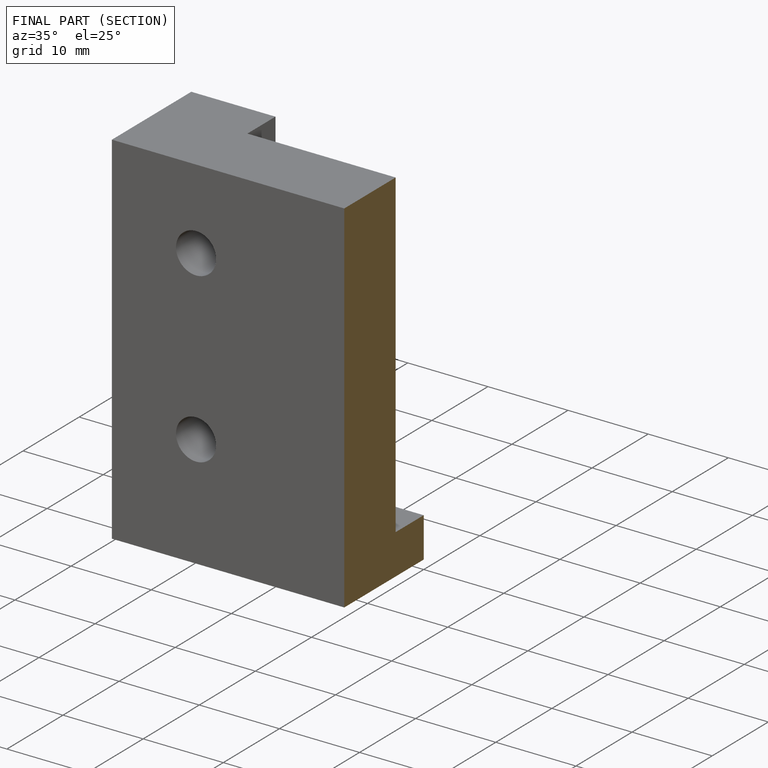
[diagram: finished part — half-section view (interior)]
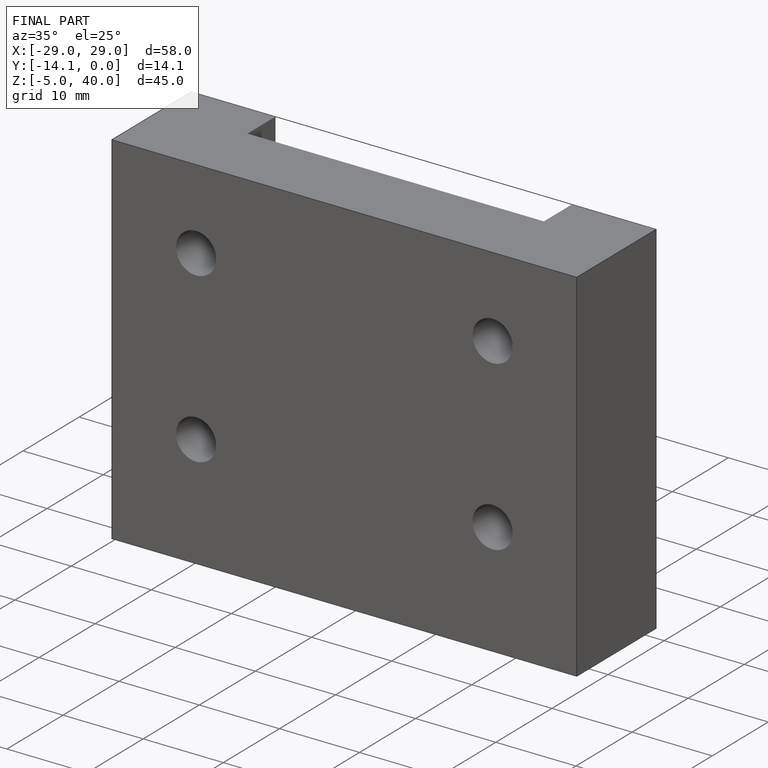
[diagram: finished part — iso view with bounding-box wireframe]
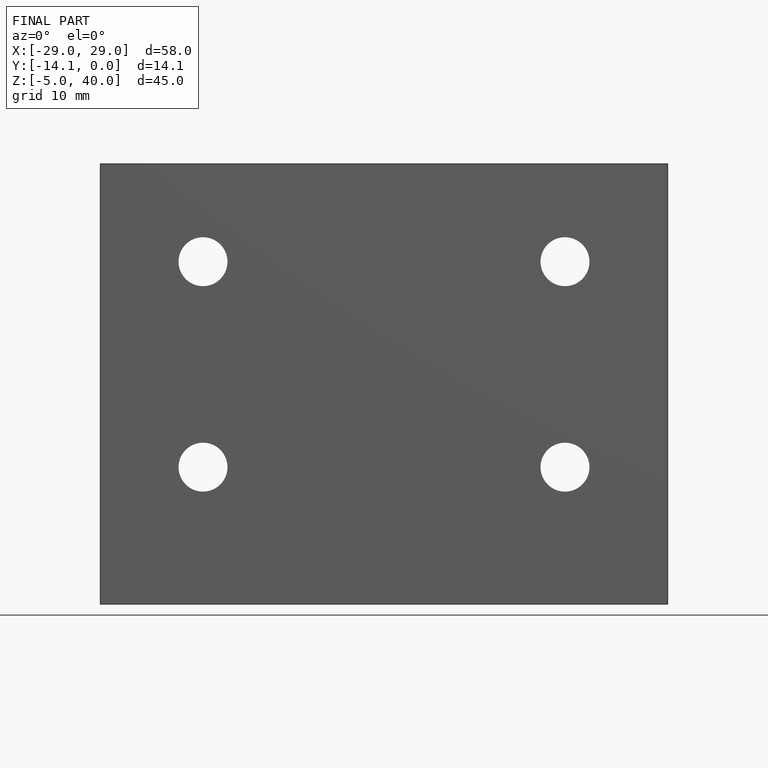
[diagram: finished part — front view with bounding-box wireframe]
